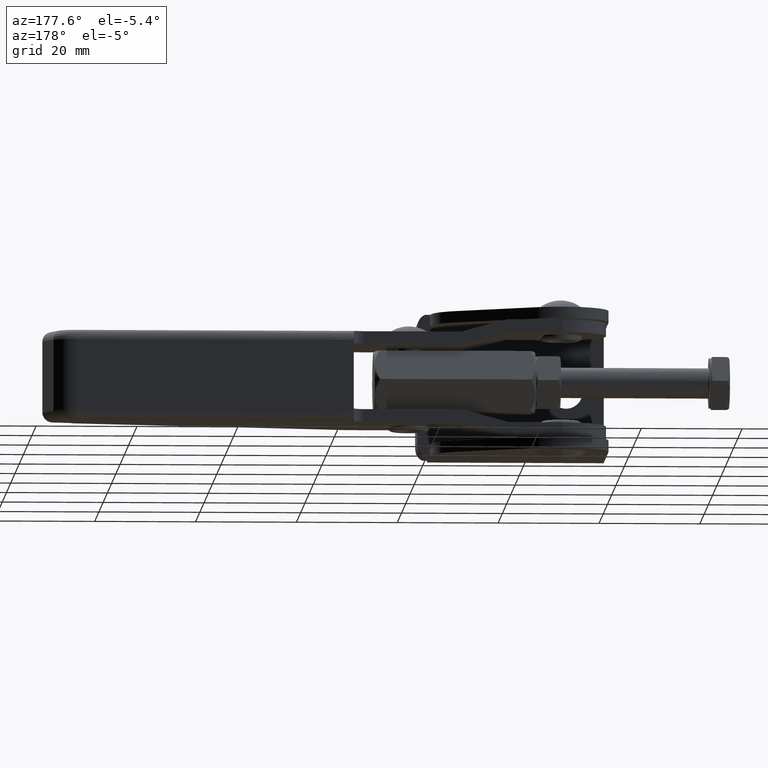
[diagram: clean part render]
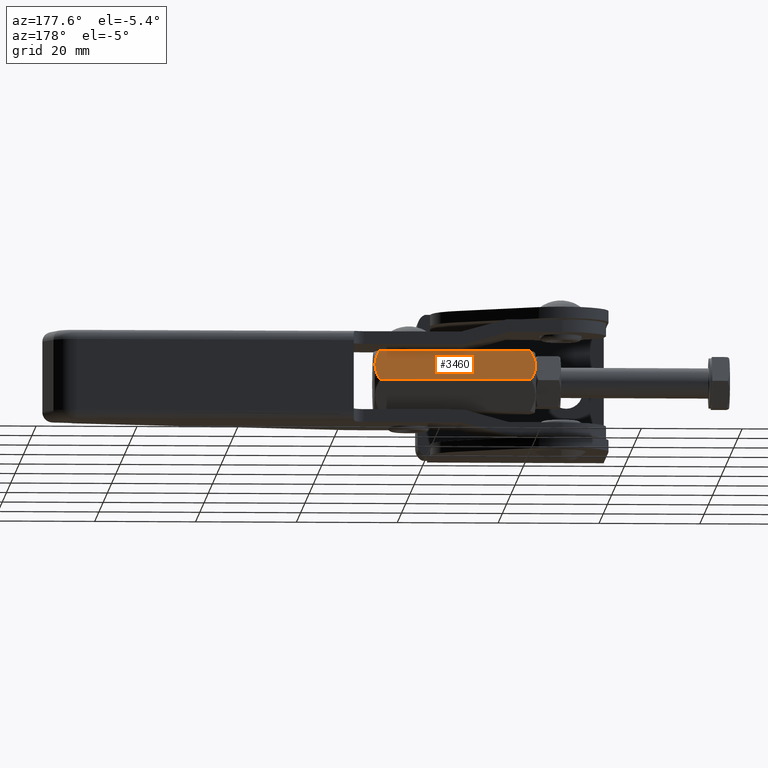
[diagram: same view with one face highlighted and labeled with its STEP entity id]
A machine part, auxiliary view. The second image highlights one B-rep face of the part: STEP entity #3460.
In plain terms, the highlighted planar face has unit normal (0, -0.866, -0.5).
Its self-contained STEP definition (entity closure, byte-faithful):
#20 = CARTESIAN_POINT ( 'NONE',  ( -2.505696150266685700, 28.37562666140952700, 0.9570906919088516500 ) ) ;
#103 = DIRECTION ( 'NONE',  ( 0.0000000000000000000, 0.4999999999850876500, -0.8660254037930482700 ) ) ;
#438 = CARTESIAN_POINT ( 'NONE',  ( 28.50078679346980700, 26.01152607125720100, 5.051833028419067300 ) ) ;
#581 = CARTESIAN_POINT ( 'NONE',  ( -1.999999998819014200, 28.92820323118099100, 2.045535061014995100E-009 ) ) ;
#660 = CARTESIAN_POINT ( 'NONE',  ( 27.99999999926412300, 28.92820323073587500, 1.274573237509195200E-009 ) ) ;
#898 = EDGE_CURVE ( 'NONE', #2585, #4338, #4776, .T. ) ;
#942 = EDGE_CURVE ( 'NONE', #4338, #3794, #1579, .T. ) ;
#1006 = CARTESIAN_POINT ( 'NONE',  ( 28.81298669598165700, 26.58735442646530000, 4.054469060720158800 ) ) ;
#1182 = CARTESIAN_POINT ( 'NONE',  ( 12.99999999999999800, 25.46410161500000100, 6.000000000000003600 ) ) ;
#1334 = ORIENTED_EDGE ( 'NONE', *, *, #898, .F. ) ;
#1532 = CARTESIAN_POINT ( 'NONE',  ( -2.500786793093289900, 26.01152607074284600, 5.051833029309958300 ) ) ;
#1543 = CARTESIAN_POINT ( 'NONE',  ( 28.92754703266889400, 27.03857357014641800, 3.272934578485668900 ) ) ;
#1579 = LINE ( 'NONE', #1704, #4497 ) ;
#1704 = CARTESIAN_POINT ( 'NONE',  ( 12.99999999999999800, 28.92820323000000500, 3.541791424061227200E-015 ) ) ;
#1776 = CARTESIAN_POINT ( 'NONE',  ( -1.999999999036602200, 25.46410161424323700, 6.000000001310763900 ) ) ;
#1844 = VERTEX_POINT ( 'NONE', #5466 ) ;
#1966 = CARTESIAN_POINT ( 'NONE',  ( -1.999999998819014200, 28.92820323118099100, 2.045535061014995100E-009 ) ) ;
#2071 = CARTESIAN_POINT ( 'NONE',  ( 27.99999999888297400, 25.46410161575682100, 6.000000000614282800 ) ) ;
#2105 = CARTESIAN_POINT ( 'NONE',  ( 28.83789456331715300, 27.78942731386732100, 1.972417745256037600 ) ) ;
#2215 = CARTESIAN_POINT ( 'NONE',  ( -2.812986695801208600, 26.58735442600930600, 4.054469061509960800 ) ) ;
#2585 = VERTEX_POINT ( 'NONE', #1776 ) ;
#2663 = CARTESIAN_POINT ( 'NONE',  ( 28.27225298272725200, 28.65595024749267600, 0.4715559982336012800 ) ) ;
#2762 = CARTESIAN_POINT ( 'NONE',  ( -2.927547032628641200, 27.03857356974042500, 3.272934579188856200 ) ) ;
#2871 = LINE ( 'NONE', #1182, #5600 ) ;
#3294 = CARTESIAN_POINT ( 'NONE',  ( -2.837894563438671200, 27.78942731357825100, 1.972417745756717800 ) ) ;
#3379 = DIRECTION ( 'NONE',  ( 0.0000000000000000000, -0.8660254037930482700, -0.4999999999850876500 ) ) ;
#3460 = ADVANCED_FACE ( 'NONE', ( #5435 ), #5559, .F. ) ;
#3605 = EDGE_CURVE ( 'NONE', #1844, #3794, #5541, .T. ) ;
#3789 = EDGE_CURVE ( 'NONE', #2585, #1844, #2871, .T. ) ;
#3794 = VERTEX_POINT ( 'NONE', #660 ) ;
#3854 = CARTESIAN_POINT ( 'NONE',  ( -2.272252982582323900, 28.65595024766155400, 0.4715559979411101400 ) ) ;
#3870 = EDGE_LOOP ( 'NONE', ( #5250, #1334, #6100, #5099 ) ) ;
#3906 = DIRECTION ( 'NONE',  ( 1.000000000000000000, -0.0000000000000000000, -0.0000000000000000000 ) ) ;
#4267 = CARTESIAN_POINT ( 'NONE',  ( 28.74739008464239000, 26.44152168185280500, 4.307058783806261300 ) ) ;
#4338 = VERTEX_POINT ( 'NONE', #1966 ) ;
#4497 = VECTOR ( 'NONE', #4963, 1000.000000000000000 ) ;
#4776 = B_SPLINE_CURVE_WITH_KNOTS ( 'NONE', 3,
 ( #5956, #5399, #1532, #5475, #2215, #6012, #2762, #6579, #3294, #20, #3854, #581 ),
 .UNSPECIFIED., .F., .F.,
 ( 4, 2, 2, 2, 2, 4 ),
 ( 1.608871309413542500E-012, 0.001789140530202689700, 0.002683710794499600800, 0.003578281058796510200, 0.005367421587390322800, 0.007156562115984137200 ),
 .UNSPECIFIED. ) ;
#4813 = CARTESIAN_POINT ( 'NONE',  ( 28.90324389080304000, 26.88518547037315900, 3.538610560579951200 ) ) ;
#4963 = DIRECTION ( 'NONE',  ( 1.000000000000000000, 0.0000000000000000000, 0.0000000000000000000 ) ) ;
#5099 = ORIENTED_EDGE ( 'NONE', *, *, #3605, .T. ) ;
#5250 = ORIENTED_EDGE ( 'NONE', *, *, #942, .F. ) ;
#5363 = CARTESIAN_POINT ( 'NONE',  ( 28.92947498010071400, 27.49218406419482400, 2.487258155916160600 ) ) ;
#5399 = CARTESIAN_POINT ( 'NONE',  ( -2.270659812429237900, 25.73476142719632900, 5.531203452285746300 ) ) ;
#5435 = FACE_OUTER_BOUND ( 'NONE', #3870, .T. ) ;
#5466 = CARTESIAN_POINT ( 'NONE',  ( 27.99999999888297400, 25.46410161575682100, 6.000000000614282800 ) ) ;
#5475 = CARTESIAN_POINT ( 'NONE',  ( -2.747390084413194000, 26.44152168138203500, 4.307058784621643700 ) ) ;
#5541 = B_SPLINE_CURVE_WITH_KNOTS ( 'NONE', 3,
 ( #2071, #6448, #438, #4267, #1006, #4813, #1543, #5363, #2105, #5908, #2663, #6469 ),
 .UNSPECIFIED., .F., .F.,
 ( 4, 2, 2, 2, 2, 4 ),
 ( 1.052286278110223400E-012, 0.001789140529394638800, 0.002683710793565815200, 0.003578281057736993100, 0.005367421586079352400, 0.007156562114421713400 ),
 .UNSPECIFIED. ) ;
#5559 = PLANE ( 'NONE',  #7092 ) ;
#5600 = VECTOR ( 'NONE', #3906, 1000.000000000000000 ) ;
#5908 = CARTESIAN_POINT ( 'NONE',  ( 28.50569615011003700, 28.37562666161128900, 0.9570906915593763200 ) ) ;
#5956 = CARTESIAN_POINT ( 'NONE',  ( -1.999999999036602200, 25.46410161424323700, 6.000000001310763900 ) ) ;
#6012 = CARTESIAN_POINT ( 'NONE',  ( -2.903243890716374200, 26.88518546994773200, 3.538610561316809700 ) ) ;
#6091 = CARTESIAN_POINT ( 'NONE',  ( -3.158132727000003000, 25.46410161500000100, 6.000000000000003600 ) ) ;
#6100 = ORIENTED_EDGE ( 'NONE', *, *, #3789, .T. ) ;
#6448 = CARTESIAN_POINT ( 'NONE',  ( 28.27065981290102700, 25.73476142759031800, 5.531203450587712600 ) ) ;
#6469 = CARTESIAN_POINT ( 'NONE',  ( 27.99999999926412300, 28.92820323073587500, 1.274573237509195200E-009 ) ) ;
#6579 = CARTESIAN_POINT ( 'NONE',  ( -2.929474980176341800, 27.49218406386023600, 2.487258156495663300 ) ) ;
#7092 = AXIS2_PLACEMENT_3D ( 'NONE', #6091, #3379, #103 ) ;